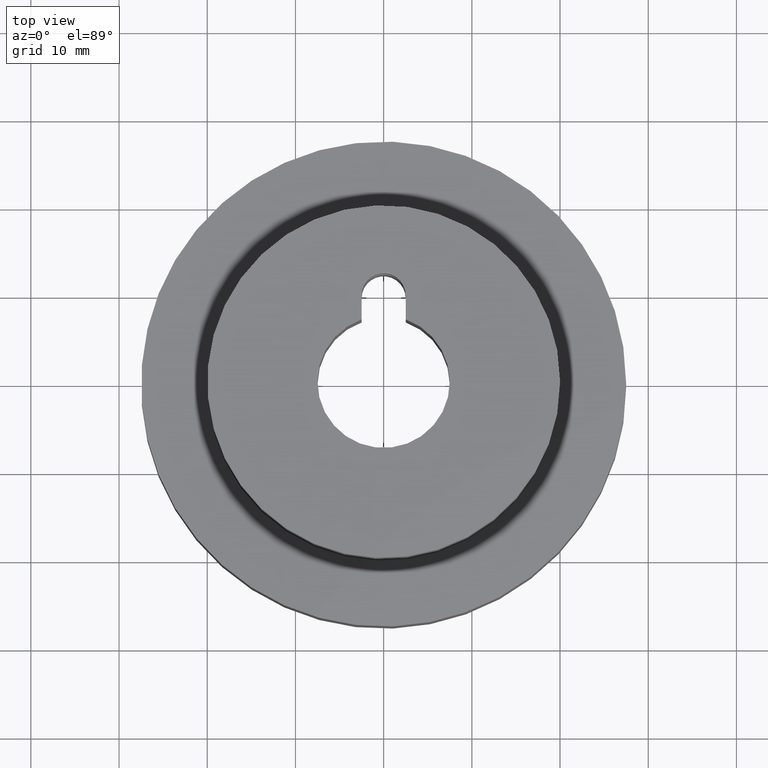
[diagram: clean part render]
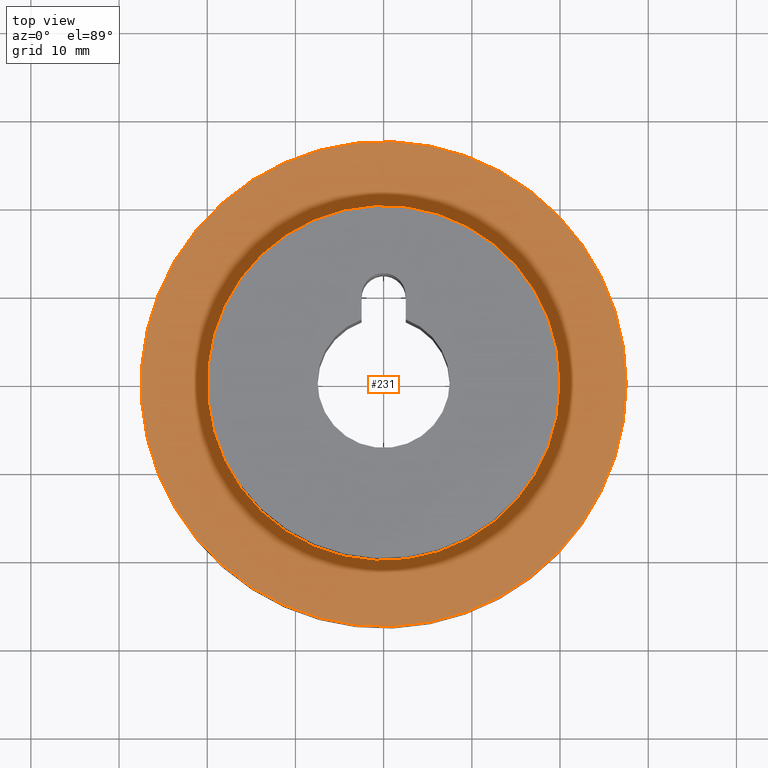
[diagram: same view with one face highlighted and labeled with its STEP entity id]
A machine part, top view. The second image highlights one B-rep face of the part: STEP entity #231.
In plain terms, the highlighted planar face has unit normal (0, 0, 1).
Its self-contained STEP definition (entity closure, byte-faithful):
#231 = ADVANCED_FACE( '', ( #290, #291 ), #292, .T. );
#290 = FACE_BOUND( '', #362, .T. );
#291 = FACE_OUTER_BOUND( '', #363, .T. );
#292 = PLANE( '', #364 );
#362 = EDGE_LOOP( '', ( #482 ) );
#363 = EDGE_LOOP( '', ( #483 ) );
#364 = AXIS2_PLACEMENT_3D( '', #484, #485, #486 );
#482 = ORIENTED_EDGE( '', *, *, #582, .F. );
#483 = ORIENTED_EDGE( '', *, *, #572, .T. );
#484 = CARTESIAN_POINT( '', ( 0.000000000000000, 0.000000000000000, 14.0000000000000 ) );
#485 = DIRECTION( '', ( 0.000000000000000, 0.000000000000000, 1.00000000000000 ) );
#486 = DIRECTION( '', ( 1.00000000000000, 0.000000000000000, 0.000000000000000 ) );
#572 = EDGE_CURVE( '', #627, #627, #628, .T. );
#582 = EDGE_CURVE( '', #644, #644, #645, .T. );
#627 = VERTEX_POINT( '', #709 );
#628 = CIRCLE( '', #710, 27.5000000000000 );
#644 = VERTEX_POINT( '', #785 );
#645 = CIRCLE( '', #786, 20.0000000000000 );
#709 = CARTESIAN_POINT( '', ( 27.5000000000000, 0.000000000000000, 14.0000000000000 ) );
#710 = AXIS2_PLACEMENT_3D( '', #956, #957, #958 );
#785 = CARTESIAN_POINT( '', ( 20.0000000000000, 0.000000000000000, 14.0000000000000 ) );
#786 = AXIS2_PLACEMENT_3D( '', #971, #972, #973 );
#956 = CARTESIAN_POINT( '', ( 0.000000000000000, 0.000000000000000, 14.0000000000000 ) );
#957 = DIRECTION( '', ( 0.000000000000000, 0.000000000000000, 1.00000000000000 ) );
#958 = DIRECTION( '', ( 1.00000000000000, 0.000000000000000, 0.000000000000000 ) );
#971 = CARTESIAN_POINT( '', ( 0.000000000000000, 0.000000000000000, 14.0000000000000 ) );
#972 = DIRECTION( '', ( 0.000000000000000, 0.000000000000000, 1.00000000000000 ) );
#973 = DIRECTION( '', ( 1.00000000000000, 0.000000000000000, 0.000000000000000 ) );